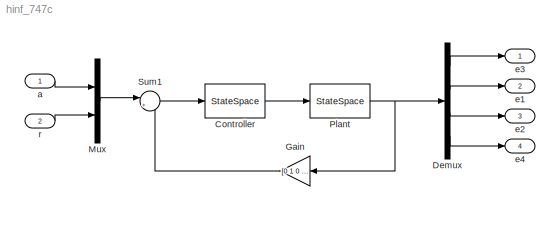
MODEL hinf_747c
KIND model
BLOCK [StateSpace] Controller
  A = K2.A
  B = K2.B
  C = K2.C
  D = K2.D
  SID = 20
BLOCK [Demux] Demux
  DisplayOption = bar
  Ports = [1, 4]
  SID = 24
BLOCK [Gain] Gain
  Gain = [0 1 0 0 ; 1 0 0 0]
  Multiplication = Matrix(K*u)
  OutDataTypeStr = Inherit: Inherit via internal rule
  ParamDataTypeStr = Inherit: Inherit via internal rule
  SID = 22
  SaturateOnIntegerOverflow = off
BLOCK [Mux] Mux
  DisplayOption = bar
  Inputs = 2
  Ports = [2, 1]
  SID = 26
BLOCK [StateSpace] Plant
  A = a
  B = b
  C = c
  D = d
  SID = 21
BLOCK [Sum] Sum1
  IconShape = round
  InputSameDT = off
  Inputs = |+-
  OutDataTypeStr = Inherit: Inherit via internal rule
  Ports = [2, 1]
  SID = 6
  SaturateOnIntegerOverflow = off
BLOCK [Inport] a
  IconDisplay = Port number
  SID = 3
BLOCK [Outport] e1
  IconDisplay = Port number
  Port = 2
  SID = 23
BLOCK [Outport] e2
  IconDisplay = Port number
  Port = 3
  SID = 28
BLOCK [Outport] e3
  IconDisplay = Port number
  SID = 18
BLOCK [Outport] e4
  IconDisplay = Port number
  Port = 4
  SID = 29
BLOCK [Inport] r
  IconDisplay = Port number
  Port = 2
  SID = 27
LINE Controller:1 -> Plant:1
LINE Demux:1 -> e3:1
LINE Demux:2 -> e1:1
LINE Demux:3 -> e2:1
LINE Demux:4 -> e4:1
LINE Gain:1 -> Sum1:2
LINE Mux:1 -> Sum1:1
NET Plant:1 -> Demux:1, Gain:1
LINE Sum1:1 -> Controller:1
LINE a:1 -> Mux:1
LINE r:1 -> Mux:2
note: NET lines group one-source signal fan-out (src -> all destinations, sorted); 1:1 wires keep LINE
